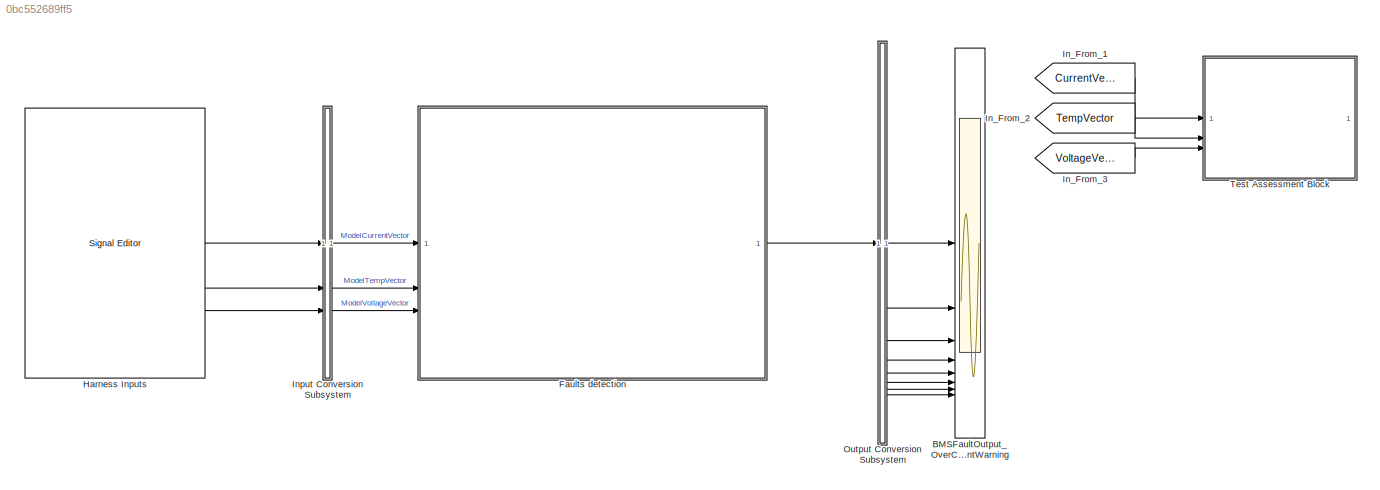
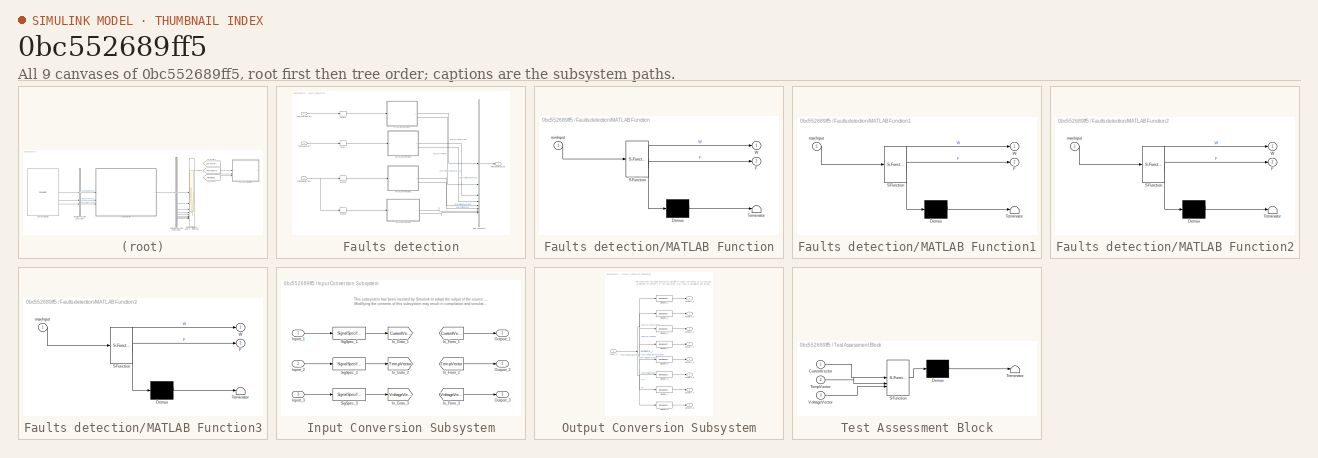
[diagram: thumbnail index - all 9 canvases of the model, root first then tree order]
MODEL slx_0bc552689ff5
KIND model
CONFIG AbsTol = auto
CONFIG EnableMultiTasking = off
CONFIG FixedStep = auto
CONFIG MaxStep = auto
CONFIG MinStep = auto
CONFIG RelTol = 1e-3
CONFIG SampleTimeConstraint = Unconstrained
CONFIG SolverName = VariableStepAuto
CONFIG StartTime = 0.0
CONFIG StopTime = +inf
BLOCK [Scope] BMSFaultOutput_OverCurrentWarning
  Floating = off
  NumInputPorts = 1
  ScopeSpecificationString = Simulink.scopes.TimeScopeBlockCfg
BLOCK [SubSystem] Faults detection
BLOCK [Inport] Faults detection/<CurrentVector>
BLOCK [Inport] Faults detection/<TempVector>
  Port = 2
BLOCK [Inport] Faults detection/<VoltageVector>
  Port = 3
BLOCK [Outport] Faults detection/BMSFaultOutput
BLOCK [BusCreator] Faults detection/Bus Creator2
  DisplayOption = bar
  InheritFromInputs = on
  Inputs = 8
BLOCK [SubSystem] Faults detection/MATLAB Function
  ErrorFcn = Stateflow.Translate.translate
  PermitHierarchicalResolution = ExplicitOnly
  SFBlockType = MATLAB Function
  TreatAsAtomicUnit = on
BLOCK [Demux] Faults detection/MATLAB Function/ Demux 
  Outputs = 1
BLOCK [S-Function] Faults detection/MATLAB Function/ SFunction 
  EnableBusSupport = on
  FunctionName = sf_sfun
  Parameters = CellVoltageLimitLow_Fault,CellVoltageLimitLow_Warning
  PortCounts = [1 3]
  SFcnIsStateOwnerBlock = off
  SFunctionDeploymentMode = off
  Tag = Stateflow S-Function 13
BLOCK [Terminator] Faults detection/MATLAB Function/ Terminator 
BLOCK [Outport] Faults detection/MATLAB Function/F
  Port = 2
BLOCK [Outport] Faults detection/MATLAB Function/W
BLOCK [Inport] Faults detection/MATLAB Function/minInput
BLOCK [SubSystem] Faults detection/MATLAB Function1
  ErrorFcn = Stateflow.Translate.translate
  PermitHierarchicalResolution = ExplicitOnly
  SFBlockType = MATLAB Function
  TreatAsAtomicUnit = on
BLOCK [Demux] Faults detection/MATLAB Function1/ Demux 
  Outputs = 1
BLOCK [S-Function] Faults detection/MATLAB Function1/ SFunction 
  EnableBusSupport = on
  FunctionName = sf_sfun
  Parameters = CellVoltageLimitHigh_Fault,CellVoltageLimitHigh_Warning
  PortCounts = [1 3]
  SFcnIsStateOwnerBlock = off
  SFunctionDeploymentMode = off
  Tag = Stateflow S-Function 14
BLOCK [Terminator] Faults detection/MATLAB Function1/ Terminator 
BLOCK [Outport] Faults detection/MATLAB Function1/F
  Port = 2
BLOCK [Outport] Faults detection/MATLAB Function1/W
BLOCK [Inport] Faults detection/MATLAB Function1/maxInput
BLOCK [SubSystem] Faults detection/MATLAB Function2
  ErrorFcn = Stateflow.Translate.translate
  PermitHierarchicalResolution = ExplicitOnly
  SFBlockType = MATLAB Function
  TreatAsAtomicUnit = on
BLOCK [Demux] Faults detection/MATLAB Function2/ Demux 
  Outputs = 1
BLOCK [S-Function] Faults detection/MATLAB Function2/ SFunction 
  EnableBusSupport = on
  FunctionName = sf_sfun
  Parameters = CellTemperatureLimitThreshold_Fault,CellTemperatureLimitThreshold_Warning
  PortCounts = [1 3]
  SFcnIsStateOwnerBlock = off
  SFunctionDeploymentMode = off
  Tag = Stateflow S-Function 15
BLOCK [Terminator] Faults detection/MATLAB Function2/ Terminator 
BLOCK [Outport] Faults detection/MATLAB Function2/F
  Port = 2
BLOCK [Outport] Faults detection/MATLAB Function2/W
BLOCK [Inport] Faults detection/MATLAB Function2/maxInput
BLOCK [SubSystem] Faults detection/MATLAB Function3
  ErrorFcn = Stateflow.Translate.translate
  PermitHierarchicalResolution = ExplicitOnly
  SFBlockType = MATLAB Function
  TreatAsAtomicUnit = on
BLOCK [Demux] Faults detection/MATLAB Function3/ Demux 
  Outputs = 1
BLOCK [S-Function] Faults detection/MATLAB Function3/ SFunction 
  EnableBusSupport = on
  FunctionName = sf_sfun
  Parameters = CellCurrentLimitThreshold_Fault,CellCurrentLimitThreshold_Warning
  PortCounts = [1 3]
  SFcnIsStateOwnerBlock = off
  SFunctionDeploymentMode = off
  Tag = Stateflow S-Function 16
BLOCK [Terminator] Faults detection/MATLAB Function3/ Terminator 
BLOCK [Outport] Faults detection/MATLAB Function3/F
  Port = 2
BLOCK [Outport] Faults detection/MATLAB Function3/W
BLOCK [Inport] Faults detection/MATLAB Function3/maxInput
BLOCK [MinMax] Faults detection/Max10
  Function = max
BLOCK [MinMax] Faults detection/Max13
BLOCK [MinMax] Faults detection/Max4
  Function = max
BLOCK [MinMax] Faults detection/Max7
  Function = max
BLOCK [Reference] Harness Inputs  REF=SignalEditorBlockLib/Signal Editor
  LibrarySourceBlock = simulink/Sources/Signal Editor
  SourceBlock = SignalEditorBlockLib/Signal Editor
  SourceType = SignalEditor
  UserDataPersistent = on
BLOCK [From] In_From_1
  GotoTag = CurrentVector
  TagVisibility = global
BLOCK [From] In_From_2
  GotoTag = TempVector
  TagVisibility = global
BLOCK [From] In_From_3
  GotoTag = VoltageVector
  TagVisibility = global
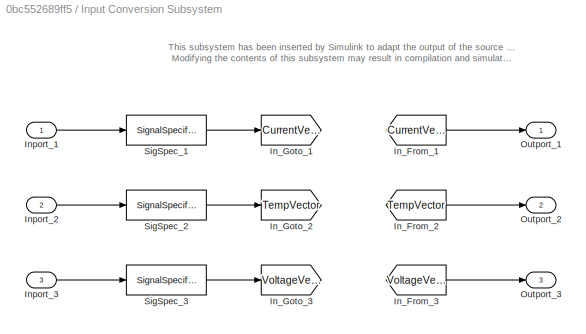
BLOCK [SubSystem] Input Conversion Subsystem
  AttributesFormatString = %<Description>
  Description = Signal spec.\nand routing
  Permissions = ReadOnly
  PermitHierarchicalResolution = ExplicitOnly
  Tag = __SLT_ICS__
  TreatAsGroupedWhenPropagatingVariantConditions = off
  UserDataPersistent = on
BLOCK [From] Input Conversion Subsystem/In_From_1
  GotoTag = CurrentVector
  TagVisibility = global
BLOCK [From] Input Conversion Subsystem/In_From_2
  GotoTag = TempVector
  TagVisibility = global
BLOCK [From] Input Conversion Subsystem/In_From_3
  GotoTag = VoltageVector
  TagVisibility = global
BLOCK [Goto] Input Conversion Subsystem/In_Goto_1
  GotoTag = CurrentVector
  TagVisibility = global
BLOCK [Goto] Input Conversion Subsystem/In_Goto_2
  GotoTag = TempVector
  TagVisibility = global
BLOCK [Goto] Input Conversion Subsystem/In_Goto_3
  GotoTag = VoltageVector
  TagVisibility = global
BLOCK [Inport] Input Conversion Subsystem/Inport_1
BLOCK [Inport] Input Conversion Subsystem/Inport_2
  Port = 2
BLOCK [Inport] Input Conversion Subsystem/Inport_3
  Port = 3
BLOCK [Outport] Input Conversion Subsystem/Outport_1
BLOCK [Outport] Input Conversion Subsystem/Outport_2
  Port = 2
BLOCK [Outport] Input Conversion Subsystem/Outport_3
  Port = 3
BLOCK [SignalSpecification] Input Conversion Subsystem/SigSpec_1
  Dimensions = [10]
  OutDataTypeStr = double
  SampleTime = 0.2
  SignalType = real
  VarSizeSig = No
BLOCK [SignalSpecification] Input Conversion Subsystem/SigSpec_2
  Dimensions = [10]
  OutDataTypeStr = double
  SampleTime = 0.2
  SignalType = real
  VarSizeSig = No
BLOCK [SignalSpecification] Input Conversion Subsystem/SigSpec_3
  Dimensions = [10]
  OutDataTypeStr = double
  SampleTime = 0.2
  SignalType = real
  VarSizeSig = No
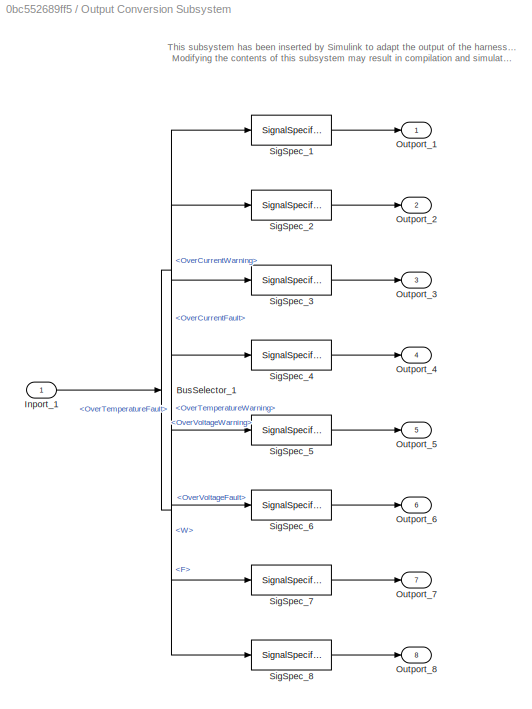
BLOCK [SubSystem] Output Conversion Subsystem
  AttributesFormatString = %<Description>
  Description = Signal spec.\nand routing
  Permissions = ReadOnly
  PermitHierarchicalResolution = ExplicitOnly
  Tag = __SLT_OCS__
  TreatAsGroupedWhenPropagatingVariantConditions = off
  UserDataPersistent = on
BLOCK [BusSelector] Output Conversion Subsystem/BusSelector_1
  OutputSignals = OverCurrentWarning,OverCurrentFault,OverTemperatureWarning,OverTemperatureFault,OverVoltageWarning,OverVoltageFault,W,F
BLOCK [Inport] Output Conversion Subsystem/Inport_1
BLOCK [Outport] Output Conversion Subsystem/Outport_1
BLOCK [Outport] Output Conversion Subsystem/Outport_2
  Port = 2
BLOCK [Outport] Output Conversion Subsystem/Outport_3
  Port = 3
BLOCK [Outport] Output Conversion Subsystem/Outport_4
  Port = 4
BLOCK [Outport] Output Conversion Subsystem/Outport_5
  Port = 5
BLOCK [Outport] Output Conversion Subsystem/Outport_6
  Port = 6
BLOCK [Outport] Output Conversion Subsystem/Outport_7
  Port = 7
BLOCK [Outport] Output Conversion Subsystem/Outport_8
  Port = 8
BLOCK [SignalSpecification] Output Conversion Subsystem/SigSpec_1
  Dimensions = [1]
  OutDataTypeStr = double
  SampleTime = 0.2
  SignalType = real
  VarSizeSig = No
BLOCK [SignalSpecification] Output Conversion Subsystem/SigSpec_2
  Dimensions = [1]
  OutDataTypeStr = double
  SampleTime = 0.2
  SignalType = real
  VarSizeSig = No
BLOCK [SignalSpecification] Output Conversion Subsystem/SigSpec_3
  Dimensions = [1]
  OutDataTypeStr = double
  SampleTime = 0.2
  SignalType = real
  VarSizeSig = No
BLOCK [SignalSpecification] Output Conversion Subsystem/SigSpec_4
  Dimensions = [1]
  OutDataTypeStr = double
  SampleTime = 0.2
  SignalType = real
  VarSizeSig = No
BLOCK [SignalSpecification] Output Conversion Subsystem/SigSpec_5
  Dimensions = [1]
  OutDataTypeStr = double
  SampleTime = 0.2
  SignalType = real
  VarSizeSig = No
BLOCK [SignalSpecification] Output Conversion Subsystem/SigSpec_6
  Dimensions = [1]
  OutDataTypeStr = double
  SampleTime = 0.2
  SignalType = real
  VarSizeSig = No
BLOCK [SignalSpecification] Output Conversion Subsystem/SigSpec_7
  Dimensions = [1]
  OutDataTypeStr = double
  SampleTime = 0.2
  SignalType = real
  VarSizeSig = No
BLOCK [SignalSpecification] Output Conversion Subsystem/SigSpec_8
  Dimensions = [1]
  OutDataTypeStr = double
  SampleTime = 0.2
  SignalType = real
  VarSizeSig = No
BLOCK [SubSystem] Test Assessment Block
  ErrorFcn = Stateflow.Translate.translate
  PermitHierarchicalResolution = ExplicitOnly
  SFBlockType = Test Sequence
  ShowPortLabels = none
  Tag = __SLT_ASMT__
  TreatAsAtomicUnit = on
BLOCK [Demux] Test Assessment Block/ Demux 
  Outputs = 1
BLOCK [S-Function] Test Assessment Block/ SFunction 
  EnableBusSupport = off
  FunctionName = sf_sfun
  PortCounts = [3 1]
  SFcnIsStateOwnerBlock = off
  SFunctionDeploymentMode = off
  Tag = Stateflow S-Function 1
BLOCK [Terminator] Test Assessment Block/ Terminator 
BLOCK [Inport] Test Assessment Block/CurrentVector
BLOCK [Inport] Test Assessment Block/TempVector
  Port = 2
BLOCK [Inport] Test Assessment Block/VoltageVector
  Port = 3
ANNOTATION Input Conversion Subsystem: This subsystem has been inserted by Simulink to adapt the output of the source blocks to the interface required by the harnessed component. Modifying the contents of this subsystem may result in compilation and simulation failure.
ANNOTATION Output Conversion Subsystem: This subsystem has been inserted by Simulink to adapt the output of the harnessed component to the interface required by the sink blocks. Modifying the contents of this subsystem may result in compilation and simulation failure.
LINE Faults detection/<CurrentVector>:1 -> Faults detection/Max4:1
LINE Faults detection/<TempVector>:1 -> Faults detection/Max7:1
NET Faults detection/<VoltageVector>:1 -> Faults detection/Max10:1, Faults detection/Max13:1
LINE Faults detection/Bus Creator2:1 -> Faults detection/BMSFaultOutput:1
LINE Faults detection/MATLAB Function1:1 -> Faults detection/Bus Creator2:5
LINE Faults detection/MATLAB Function1:2 -> Faults detection/Bus Creator2:6
LINE Faults detection/MATLAB Function2:1 -> Faults detection/Bus Creator2:3
LINE Faults detection/MATLAB Function2:2 -> Faults detection/Bus Creator2:4
LINE Faults detection/MATLAB Function3:1 -> Faults detection/Bus Creator2:1
LINE Faults detection/MATLAB Function3:2 -> Faults detection/Bus Creator2:2
LINE Faults detection/MATLAB Function:1 -> Faults detection/Bus Creator2:7
LINE Faults detection/MATLAB Function:2 -> Faults detection/Bus Creator2:8
LINE Faults detection/Max10:1 -> Faults detection/MATLAB Function1:1
LINE Faults detection/Max13:1 -> Faults detection/MATLAB Function:1
LINE Faults detection/Max4:1 -> Faults detection/MATLAB Function3:1
LINE Faults detection/Max7:1 -> Faults detection/MATLAB Function2:1
LINE Faults detection:1 -> Output Conversion Subsystem:1
LINE Harness Inputs:1 -> Input Conversion Subsystem:1
LINE Harness Inputs:2 -> Input Conversion Subsystem:2
LINE Harness Inputs:3 -> Input Conversion Subsystem:3
LINE In_From_1:1 -> Test Assessment Block:1
LINE In_From_2:1 -> Test Assessment Block:2
LINE In_From_3:1 -> Test Assessment Block:3
LINE Input Conversion Subsystem/In_From_1:1 -> Input Conversion Subsystem/Outport_1:1
LINE Input Conversion Subsystem/In_From_2:1 -> Input Conversion Subsystem/Outport_2:1
LINE Input Conversion Subsystem/In_From_3:1 -> Input Conversion Subsystem/Outport_3:1
LINE Input Conversion Subsystem/Inport_1:1 -> Input Conversion Subsystem/SigSpec_1:1
LINE Input Conversion Subsystem/Inport_2:1 -> Input Conversion Subsystem/SigSpec_2:1
LINE Input Conversion Subsystem/Inport_3:1 -> Input Conversion Subsystem/SigSpec_3:1
LINE Input Conversion Subsystem/SigSpec_1:1 -> Input Conversion Subsystem/In_Goto_1:1
LINE Input Conversion Subsystem/SigSpec_2:1 -> Input Conversion Subsystem/In_Goto_2:1
LINE Input Conversion Subsystem/SigSpec_3:1 -> Input Conversion Subsystem/In_Goto_3:1
LINE Input Conversion Subsystem:1 -> Faults detection:1
LINE Input Conversion Subsystem:2 -> Faults detection:2
LINE Input Conversion Subsystem:3 -> Faults detection:3
LINE Output Conversion Subsystem/BusSelector_1:1 -> Output Conversion Subsystem/SigSpec_1:1
LINE Output Conversion Subsystem/BusSelector_1:2 -> Output Conversion Subsystem/SigSpec_2:1
LINE Output Conversion Subsystem/BusSelector_1:3 -> Output Conversion Subsystem/SigSpec_3:1
LINE Output Conversion Subsystem/BusSelector_1:4 -> Output Conversion Subsystem/SigSpec_4:1
LINE Output Conversion Subsystem/BusSelector_1:5 -> Output Conversion Subsystem/SigSpec_5:1
LINE Output Conversion Subsystem/BusSelector_1:6 -> Output Conversion Subsystem/SigSpec_6:1
LINE Output Conversion Subsystem/BusSelector_1:7 -> Output Conversion Subsystem/SigSpec_7:1
LINE Output Conversion Subsystem/BusSelector_1:8 -> Output Conversion Subsystem/SigSpec_8:1
LINE Output Conversion Subsystem/Inport_1:1 -> Output Conversion Subsystem/BusSelector_1:1
LINE Output Conversion Subsystem/SigSpec_1:1 -> Output Conversion Subsystem/Outport_1:1
LINE Output Conversion Subsystem/SigSpec_2:1 -> Output Conversion Subsystem/Outport_2:1
LINE Output Conversion Subsystem/SigSpec_3:1 -> Output Conversion Subsystem/Outport_3:1
LINE Output Conversion Subsystem/SigSpec_4:1 -> Output Conversion Subsystem/Outport_4:1
LINE Output Conversion Subsystem/SigSpec_5:1 -> Output Conversion Subsystem/Outport_5:1
LINE Output Conversion Subsystem/SigSpec_6:1 -> Output Conversion Subsystem/Outport_6:1
LINE Output Conversion Subsystem/SigSpec_7:1 -> Output Conversion Subsystem/Outport_7:1
LINE Output Conversion Subsystem/SigSpec_8:1 -> Output Conversion Subsystem/Outport_8:1
LINE Output Conversion Subsystem:1 -> BMSFaultOutput_OverCurrentWarning:1
LINE Output Conversion Subsystem:2 -> BMSFaultOutput_OverCurrentWarning:2
LINE Output Conversion Subsystem:3 -> BMSFaultOutput_OverCurrentWarning:3
LINE Output Conversion Subsystem:4 -> BMSFaultOutput_OverCurrentWarning:4
LINE Output Conversion Subsystem:5 -> BMSFaultOutput_OverCurrentWarning:5
LINE Output Conversion Subsystem:6 -> BMSFaultOutput_OverCurrentWarning:6
LINE Output Conversion Subsystem:7 -> BMSFaultOutput_OverCurrentWarning:7
LINE Output Conversion Subsystem:8 -> BMSFaultOutput_OverCurrentWarning:8
note: NET lines group one-source signal fan-out (src -> all destinations, sorted); 1:1 wires keep LINE
CHART Faults detection/MATLAB Function3 states=1 transitions=1
  STATE_LABEL 'eML_blk_kernel()'
  STATE_LABEL 'SCRIPT:\nfunction [W, F] = overCurrent( maxInput,CellCurrentLimitThreshold_Warning, CellCurrentLimitThreshold_Fault)\nW=0;\nF=0;\nif maxInput >= CellCurrentLimitThreshold_Warning && maxInput < CellCurrentLimitThreshold_Fault\n\n    W=1;\n    F=0;\nelseif maxInput >= CellCurrentLimitThreshold_Fault\n    W=0;\n    F=1;\nend\n\nend\n'
CHART Test Assessment Block states=3 transitions=10
  STATE_LABEL 'Run\n\n'
  STATE_LABEL 'step_1_1'
  STATE_LABEL 'step_1_2'
  STATE_LABEL '[t < 5\n]'
  STATE_LABEL '[~in(Run.step_1_1)]'
  STATE_LABEL '[~in(Run.step_1_2)]'
  STATE_LABEL 'step_1_1'
  STATE_LABEL 'step_1_2'
CHART Faults detection/MATLAB Function states=1 transitions=1
  STATE_LABEL 'eML_blk_kernel()'
  STATE_LABEL 'SCRIPT:\nfunction [W,F] = underVoltage(minInput,CellVoltageLimitLow_Warning, CellVoltageLimitLow_Fault)\nW=0;\nF=0;\nif minInput <= CellVoltageLimitLow_Warning && minInput > CellVoltageLimitLow_Fault\n    W=1;\n    F=0;\nelseif minInput <= CellVoltageLimitLow_Fault\n    W=0;\n    F=1;\nend\nend\n'
CHART Faults detection/MATLAB Function1 states=1 transitions=1
  STATE_LABEL 'eML_blk_kernel()'
  STATE_LABEL 'SCRIPT:\nfunction [W, F] = overVoltage( maxInput,CellVoltageLimitHigh_Warning, CellVoltageLimitHigh_Fault)\nW=0;\nF=0;\nif maxInput >= CellVoltageLimitHigh_Warning && maxInput < CellVoltageLimitHigh_Fault\n\n    W=1;\n    F=0;\nelseif maxInput >= CellVoltageLimitHigh_Fault\n    W=0;\n    F=1;\nend\n\nend\n'
CHART Faults detection/MATLAB Function2 states=1 transitions=1
  STATE_LABEL 'eML_blk_kernel()'
  STATE_LABEL 'SCRIPT:\nfunction [W, F] = tempreture( maxInput,CellTemperatureLimitThreshold_Warning, CellTemperatureLimitThreshold_Fault)\nW=0;\nF=0;\nif maxInput >= CellTemperatureLimitThreshold_Warning && maxInput < CellTemperatureLimitThreshold_Fault\n\n    W=1;\n    F=0;\nelseif maxInput >= CellTemperatureLimitThreshold_Fault\n    W=0;\n    F=1;\nend\n\nend\n'
CHART  states=0 transitions=0
CHART  states=0 transitions=0
CHART  states=0 transitions=0
CHART  states=0 transitions=0
CHART  states=0 transitions=0
